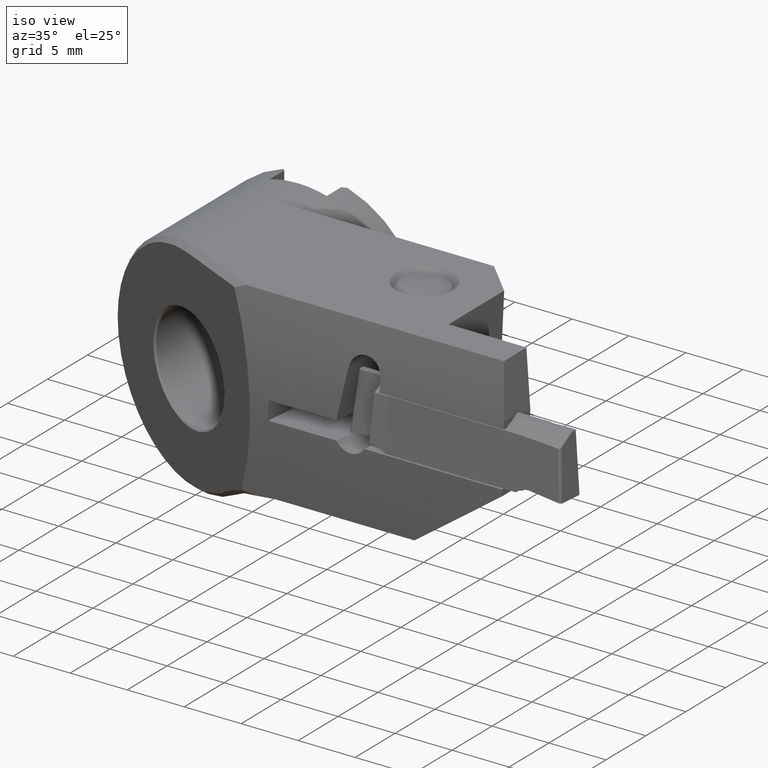
[diagram: clean part render]
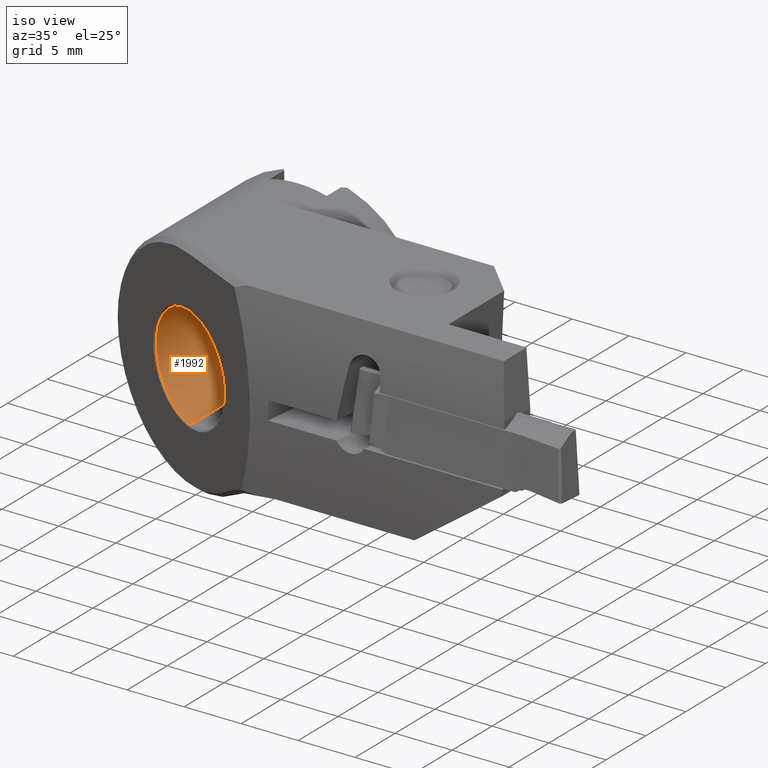
[diagram: same view with one face highlighted and labeled with its STEP entity id]
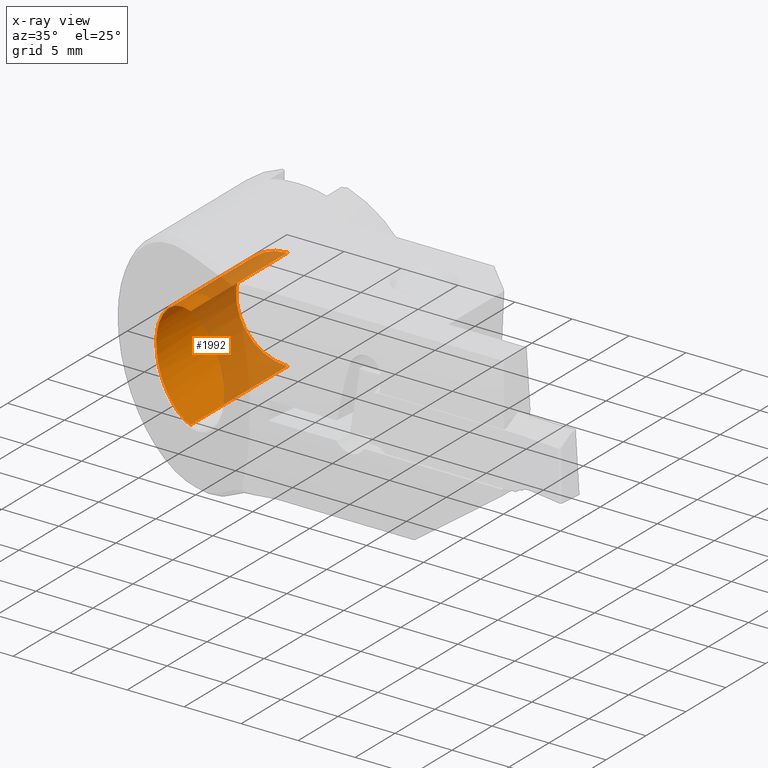
[diagram: x-ray of the same camera — body ghosted, the highlighted face saturated]
A machine part, iso view. The second image highlights one B-rep face of the part: STEP entity #1992.
The next image is the same camera in x-ray: the body ghosted, the highlighted face saturated — about 48% of this face is hidden behind the body in this view.
In plain terms, the highlighted cylindrical surface (partial cylindrical patch) has radius 4.5 mm, axis along (-0, 1, -0).
Its self-contained STEP definition (entity closure, byte-faithful):
#862=VERTEX_POINT('NONE',#2341);
#912=EDGE_CURVE('NONE',#2188,#1298,#2396,.T.);
#964=VERTEX_POINT('NONE',#2455);
#1174=VERTEX_POINT('NONE',#2688);
#1298=VERTEX_POINT('NONE',#2821);
#1544=EDGE_CURVE('NONE',#1174,#862,#3094,.T.);
#1882=EDGE_CURVE('NONE',#964,#1174,#3459,.T.);
#1974=EDGE_CURVE('NONE',#964,#1298,#3559,.T.);
#1992=ADVANCED_FACE('NONE',(#3580),#3581,.F.);
#2188=VERTEX_POINT('NONE',#3799);
#2196=EDGE_CURVE('NONE',#862,#2188,#3808,.T.);
#2341=CARTESIAN_POINT('',(-4.43336134573089E-015,-15.649499139254,-4.5));
#2396=CIRCLE('',#4146,4.5);
#2455=CARTESIAN_POINT('',(0.0,-15.649499139254,4.5));
#2688=CARTESIAN_POINT('',(-4.5,-13.491700529277,-8.46999163706433E-016));
#2821=CARTESIAN_POINT('',(0.0,-3.5,4.5));
#3094=B_SPLINE_CURVE_WITH_KNOTS('',3,(#5437,#5438,#5439,#5440,#5441,#5442,#5443,#5444,#5445,#5446,#5447,#5448,#5449,#5450,#5451,#5452,#5453,#5454,#5455,#5456,#5457,#5458,#5459,#5460,#5461,#5462,#5463,#5464,#5465,#5466,#5467,#5468),.UNSPECIFIED.,.F.,.F.,(4,2,2,2,1,1,1,2,2,2,2,2,1,1,1,2,2,2,4),(0.0,0.0624999999999992,0.0937499999999989,0.109374999999999,0.117187499999999,0.121093749999999,0.123046874999999,0.124023437499998,0.124999999999998,0.156249999999998,0.171874999999998,0.179687499999999,0.183593749999999,0.185546874999999,0.186523437499999,0.187011718749999,0.187499999999999,0.218749999999999,0.25),.UNSPECIFIED.);
#3459=B_SPLINE_CURVE_WITH_KNOTS('',3,(#6354,#6355,#6356,#6357,#6358,#6359,#6360,#6361,#6362,#6363,#6364,#6365,#6366,#6367,#6368,#6369,#6370,#6371,#6372,#6373,#6374,#6375,#6376,#6377,#6378,#6379,#6380,#6381,#6382,#6383),.UNSPECIFIED.,.F.,.F.,(4,2,2,2,1,1,1,2,2,2,2,1,1,1,2,2,2,4),(0.75,0.781250000000004,0.796875000000005,0.804687500000006,0.808593750000007,0.810546875000007,0.811523437500007,0.812011718750007,0.812500000000007,0.843750000000006,0.859375000000006,0.867187500000005,0.871093750000005,0.873046875000005,0.874023437500005,0.875000000000005,0.937500000000003,1.0),.UNSPECIFIED.);
#3559=LINE('',#6567,#6568);
#3580=FACE_OUTER_BOUND('',#6593,.T.);
#3581=CYLINDRICAL_SURFACE('',#6594,4.5);
#3799=CARTESIAN_POINT('',(5.51091059616309E-016,-3.5,-4.5));
#3808=LINE('',#7046,#7047);
#4146=AXIS2_PLACEMENT_3D('',#7231,#7232,#7233);
#5437=CARTESIAN_POINT('',(-4.5,-13.491700529277,-8.46999163706433E-016));
#5438=CARTESIAN_POINT('',(-4.5,-13.4917269228728,-0.556793319572281));
#5439=CARTESIAN_POINT('',(-4.39528760801644,-13.5444071680397,-1.13067463159959));
#5440=CARTESIAN_POINT('',(-4.06595508826258,-13.7024083131465,-1.95057780930756));
#5441=CARTESIAN_POINT('',(-3.92772620207836,-13.7682388244082,-2.2168731272157));
#5442=CARTESIAN_POINT('',(-3.67861412610712,-13.8867297856399,-2.59628349884429));
#5443=CARTESIAN_POINT('',(-3.5886373693149,-13.9295176384404,-2.71940908936211));
#5444=CARTESIAN_POINT('',(-3.44358689517585,-13.9986357162258,-2.89785874160738));
#5445=CARTESIAN_POINT('',(-3.36854260686971,-14.0344288297647,-2.98552372440659));
#5446=CARTESIAN_POINT('',(-3.27667805110411,-14.0783470928576,-3.08480210900718));
#5447=CARTESIAN_POINT('',(-3.22968136308043,-14.1008461320617,-3.13365856754265));
#5448=CARTESIAN_POINT('',(-3.20931336344985,-14.110604271933,-3.15442575204472));
#5449=CARTESIAN_POINT('',(-3.19568452463131,-14.1171354084024,-3.16823207941159));
#5450=CARTESIAN_POINT('',(-3.18776827384912,-14.120930091353,-3.17619275682981));
#5451=CARTESIAN_POINT('',(-2.99677224303008,-14.2125056969468,-3.36718878764885));
#5452=CARTESIAN_POINT('',(-2.78367226766998,-14.3153029402007,-3.54794494521343));
#5453=CARTESIAN_POINT('',(-2.41902892372138,-14.4904937890986,-3.79736556354725));
#5454=CARTESIAN_POINT('',(-2.29001872191114,-14.5523899027341,-3.87685016923272));
#5455=CARTESIAN_POINT('',(-2.08532904149526,-14.6504828191916,-3.98841334794204));
#5456=CARTESIAN_POINT('',(-2.01524009025781,-14.6840552490115,-4.02432185982966));
#5457=CARTESIAN_POINT('',(-1.90735331108222,-14.7357260802424,-4.07597756494377));
#5458=CARTESIAN_POINT('',(-1.85272194793755,-14.7618895424831,-4.10125350173343));
#5459=CARTESIAN_POINT('',(-1.78779311509502,-14.7929876633582,-4.12971171718368));
#5460=CARTESIAN_POINT('',(-1.75503241411461,-14.8086802441943,-4.14367506559768));
#5461=CARTESIAN_POINT('',(-1.74092882240723,-14.8154363903523,-4.14960153263547));
#5462=CARTESIAN_POINT('',(-1.73151238609939,-14.8199473220957,-4.15353956296594));
#5463=CARTESIAN_POINT('',(-1.72498697913099,-14.8230734070821,-4.15625190009158));
#5464=CARTESIAN_POINT('',(-1.53570174568335,-14.9137547909878,-4.23465638176381));
#5465=CARTESIAN_POINT('',(-1.3009327721142,-15.0271504866634,-4.31790671902968));
#5466=CARTESIAN_POINT('',(-0.727033137498864,-15.3021606979827,-4.45063673296092));
#5467=CARTESIAN_POINT('',(-0.387134103392954,-15.4638641560251,-4.5));
#5468=CARTESIAN_POINT('',(-4.43336134573089E-015,-15.649499139254,-4.5));
#6354=CARTESIAN_POINT('',(0.0,-15.649499139254,4.5));
#6355=CARTESIAN_POINT('',(-0.387134069365786,-15.4638641710868,4.5));
#6356=CARTESIAN_POINT('',(-0.726757909130385,-15.3022941341734,4.45068168411524));
#6357=CARTESIAN_POINT('',(-1.15718879027805,-15.0960364756839,4.3511607912838));
#6358=CARTESIAN_POINT('',(-1.28772184394322,-15.0333001556676,4.31360355803522));
#6359=CARTESIAN_POINT('',(-1.46457132529592,-14.9482200248631,4.25545316434532));
#6360=CARTESIAN_POINT('',(-1.52036965033392,-14.921364039465,4.23575755543626));
#6361=CARTESIAN_POINT('',(-1.59944477946693,-14.8833361486729,4.20625342590754));
#6362=CARTESIAN_POINT('',(-1.63782712044699,-14.8648862251031,4.19151026983619));
#6363=CARTESIAN_POINT('',(-1.68061096164675,-14.8443483524676,4.17442696518692));
#6364=CARTESIAN_POINT('',(-1.70150742510098,-14.8343261756988,4.16592655013204));
#6365=CARTESIAN_POINT('',(-1.7103572522664,-14.8300838341299,4.16229361845888));
#6366=CARTESIAN_POINT('',(-1.71623366734085,-14.8272673568719,4.15987404806078));
#6367=CARTESIAN_POINT('',(-1.71735664452103,-14.8267290650667,4.15941248699624));
#6368=CARTESIAN_POINT('',(-2.02404316072048,-14.6797926799756,4.03237881986588));
#6369=CARTESIAN_POINT('',(-2.29712322643804,-14.5490578176828,3.88071765407113));
#6370=CARTESIAN_POINT('',(-2.66178957335876,-14.3738669687849,3.63133066852548));
#6371=CARTESIAN_POINT('',(-2.77591441674197,-14.3189552599091,3.54452684883822));
#6372=CARTESIAN_POINT('',(-2.9362217856526,-14.2418155577308,3.41078355854806));
#6373=CARTESIAN_POINT('',(-3.01365967687577,-14.2045526719255,3.34302436075653));
#6374=CARTESIAN_POINT('',(-3.09934907000311,-14.1633664943994,3.26281617787197));
#6375=CARTESIAN_POINT('',(-3.14104485304174,-14.143345202948,3.22247016225604));
#6376=CARTESIAN_POINT('',(-3.15866990851081,-14.1348871774642,3.20513214474481));
#6377=CARTESIAN_POINT('',(-3.17036578498796,-14.1292757222517,3.19356359660894));
#6378=CARTESIAN_POINT('',(-3.17511564912594,-14.126997212603,3.18884538155299));
#6379=CARTESIAN_POINT('',(-3.62133195300521,-13.9130105241893,2.74262907767372));
#6380=CARTESIAN_POINT('',(-3.95620192273748,-13.7549961830628,2.22383556637043));
#6381=CARTESIAN_POINT('',(-4.39529998346608,-13.544327989587,1.13062652324668));
#6382=CARTESIAN_POINT('',(-4.5,-13.4916741372377,0.556760483301158));
#6383=CARTESIAN_POINT('',(-4.5,-13.491700529277,-8.46999163706433E-016));
#6567=CARTESIAN_POINT('',(0.0,0.0,4.5));
#6568=VECTOR('',#8414,1000.0);
#6593=EDGE_LOOP('',(#8450,#8451,#8452,#8453,#8454));
#6594=AXIS2_PLACEMENT_3D('',#8455,#8456,#8457);
#7046=CARTESIAN_POINT('',(5.51091059616309E-016,0.0,-4.5));
#7047=VECTOR('',#8727,1000.0);
#7231=CARTESIAN_POINT('',(0.0,-3.5,0.0));
#7232=DIRECTION('',(-0.0,1.0,0.0));
#7233=DIRECTION('',(0.0,0.0,1.0));
#8414=DIRECTION('',(-0.0,1.0,0.0));
#8450=ORIENTED_EDGE('',*,*,#1882,.T.);
#8451=ORIENTED_EDGE('',*,*,#1544,.T.);
#8452=ORIENTED_EDGE('',*,*,#2196,.T.);
#8453=ORIENTED_EDGE('',*,*,#912,.T.);
#8454=ORIENTED_EDGE('',*,*,#1974,.F.);
#8455=CARTESIAN_POINT('',(0.0,0.0,0.0));
#8456=DIRECTION('',(-0.0,1.0,-0.0));
#8457=DIRECTION('',(0.0,0.0,1.0));
#8727=DIRECTION('',(-0.0,1.0,0.0));